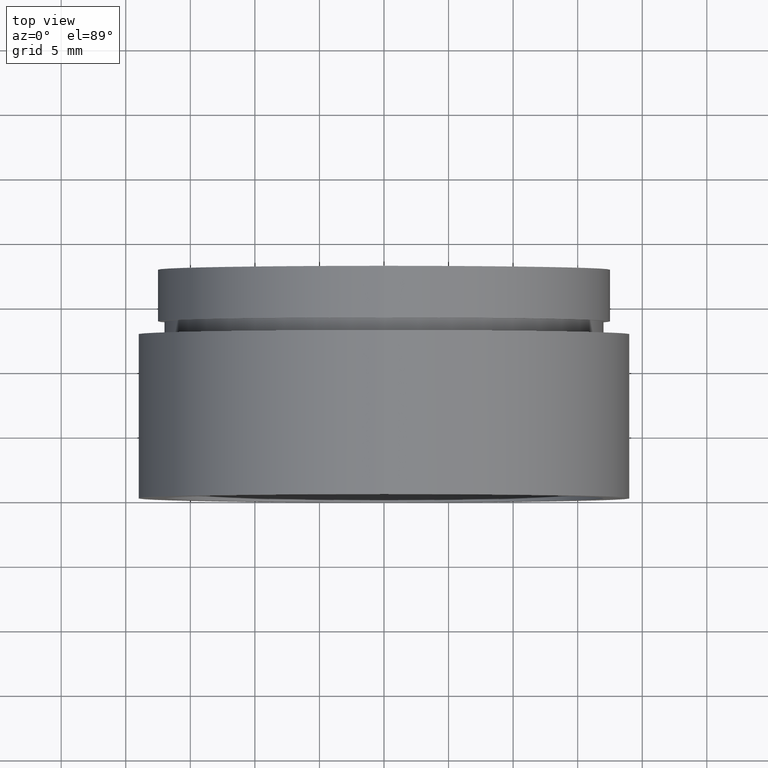
[diagram: clean part render]
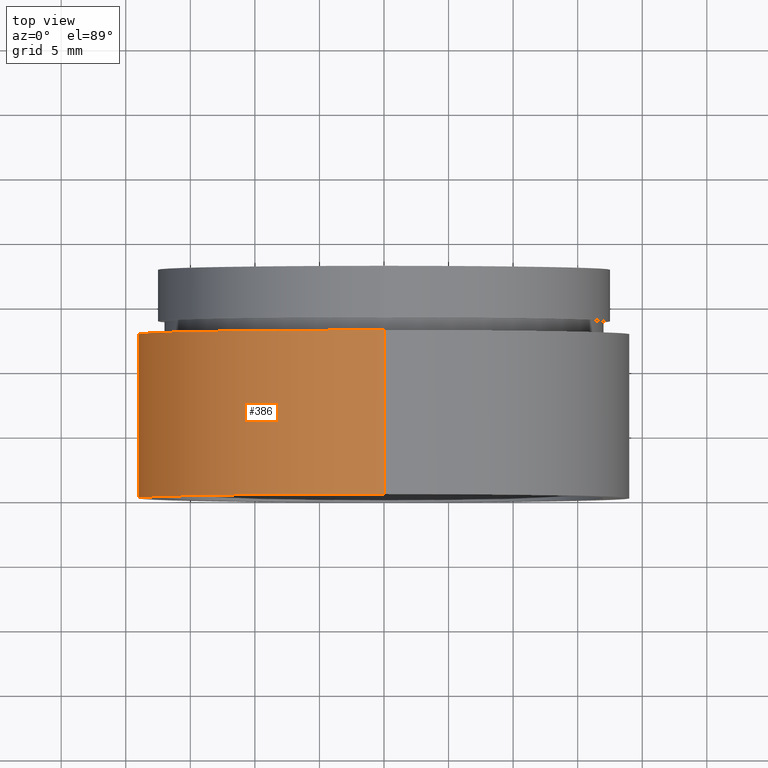
[diagram: same view with one face highlighted and labeled with its STEP entity id]
A machine part, top view. The second image highlights one B-rep face of the part: STEP entity #386.
In plain terms, the highlighted cylindrical surface (partial cylindrical patch) has radius 19.05 mm, axis along (-0, 1, -0).
Its self-contained STEP definition (entity closure, byte-faithful):
#33 = EDGE_CURVE ( 'NONE', #41, #47, #86, .T. ) ;
#41 = VERTEX_POINT ( 'NONE', #354 ) ;
#47 = VERTEX_POINT ( 'NONE', #64 ) ;
#64 = CARTESIAN_POINT ( 'NONE',  ( 0.0000000000000000000, 12.69999999999998900, 19.05000000000002200 ) ) ;
#65 = DIRECTION ( 'NONE',  ( -0.0000000000000000000, 1.000000000000000000, -0.0000000000000000000 ) ) ;
#66 = AXIS2_PLACEMENT_3D ( 'NONE', #71, #65, #309 ) ;
#67 = CARTESIAN_POINT ( 'NONE',  ( 0.0000000000000000000, 12.69999999999998900, 0.0000000000000000000 ) ) ;
#71 = CARTESIAN_POINT ( 'NONE',  ( 0.0000000000000000000, -2.775557561562891400E-014, 0.0000000000000000000 ) ) ;
#78 = ORIENTED_EDGE ( 'NONE', *, *, #137, .T. ) ;
#86 = CIRCLE ( 'NONE', #136, 19.05000000000002200 ) ;
#114 = CARTESIAN_POINT ( 'NONE',  ( 2.332952152375710400E-015, -2.775557561562891400E-014, -19.05000000000002200 ) ) ;
#120 = DIRECTION ( 'NONE',  ( -0.0000000000000000000, 1.000000000000000000, -0.0000000000000000000 ) ) ;
#130 = VERTEX_POINT ( 'NONE', #114 ) ;
#136 = AXIS2_PLACEMENT_3D ( 'NONE', #67, #441, #167 ) ;
#137 = EDGE_CURVE ( 'NONE', #130, #201, #321, .T. ) ;
#153 = CARTESIAN_POINT ( 'NONE',  ( 0.0000000000000000000, 161.3761669434274500, 0.0000000000000000000 ) ) ;
#167 = DIRECTION ( 'NONE',  ( 0.0000000000000000000, 0.0000000000000000000, 1.000000000000000000 ) ) ;
#188 = VECTOR ( 'NONE', #120, 1000.000000000000000 ) ;
#201 = VERTEX_POINT ( 'NONE', #229 ) ;
#204 = CYLINDRICAL_SURFACE ( 'NONE', #499, 19.05000000000002200 ) ;
#213 = VECTOR ( 'NONE', #295, 1000.000000000000000 ) ;
#229 = CARTESIAN_POINT ( 'NONE',  ( 0.0000000000000000000, -2.775557561562891400E-014, 19.05000000000002200 ) ) ;
#253 = CARTESIAN_POINT ( 'NONE',  ( 2.332952152375710400E-015, 161.3761669434274500, -19.05000000000002200 ) ) ;
#295 = DIRECTION ( 'NONE',  ( -0.0000000000000000000, 1.000000000000000000, -0.0000000000000000000 ) ) ;
#309 = DIRECTION ( 'NONE',  ( 0.0000000000000000000, 0.0000000000000000000, 1.000000000000000000 ) ) ;
#313 = LINE ( 'NONE', #253, #188 ) ;
#321 = CIRCLE ( 'NONE', #66, 19.05000000000002200 ) ;
#322 = ORIENTED_EDGE ( 'NONE', *, *, #496, .T. ) ;
#328 = EDGE_LOOP ( 'NONE', ( #456, #78, #322, #579 ) ) ;
#333 = LINE ( 'NONE', #581, #213 ) ;
#354 = CARTESIAN_POINT ( 'NONE',  ( 2.332952152375710400E-015, 12.69999999999998900, -19.05000000000002200 ) ) ;
#386 = ADVANCED_FACE ( 'NONE', ( #587 ), #204, .T. ) ;
#426 = DIRECTION ( 'NONE',  ( -0.0000000000000000000, 1.000000000000000000, -0.0000000000000000000 ) ) ;
#441 = DIRECTION ( 'NONE',  ( -0.0000000000000000000, 1.000000000000000000, -0.0000000000000000000 ) ) ;
#456 = ORIENTED_EDGE ( 'NONE', *, *, #546, .F. ) ;
#477 = DIRECTION ( 'NONE',  ( 0.0000000000000000000, 0.0000000000000000000, 1.000000000000000000 ) ) ;
#496 = EDGE_CURVE ( 'NONE', #201, #47, #333, .T. ) ;
#499 = AXIS2_PLACEMENT_3D ( 'NONE', #153, #426, #477 ) ;
#546 = EDGE_CURVE ( 'NONE', #130, #41, #313, .T. ) ;
#579 = ORIENTED_EDGE ( 'NONE', *, *, #33, .F. ) ;
#581 = CARTESIAN_POINT ( 'NONE',  ( 0.0000000000000000000, 161.3761669434274500, 19.05000000000002200 ) ) ;
#587 = FACE_OUTER_BOUND ( 'NONE', #328, .T. ) ;